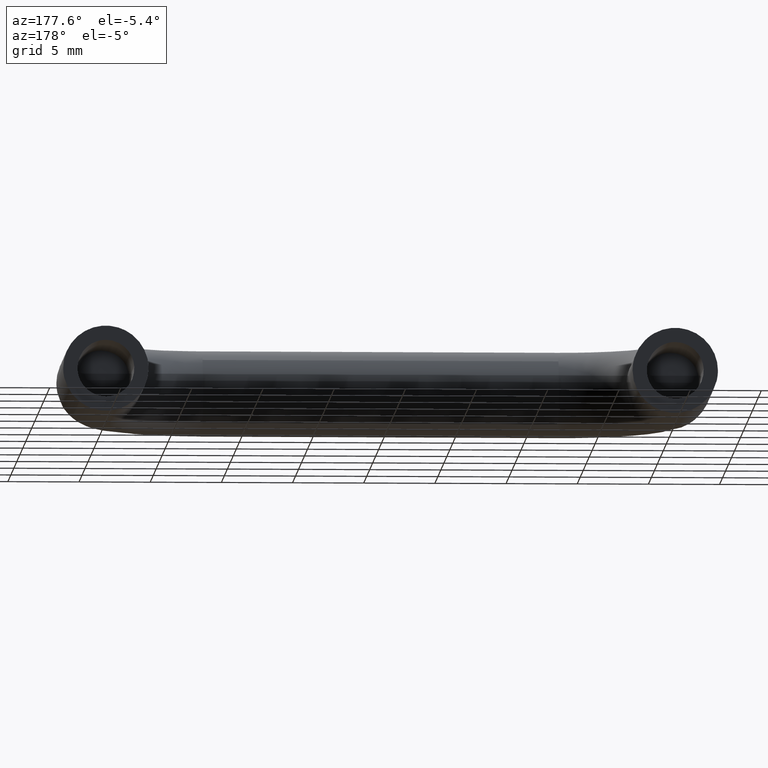
[diagram: clean part render]
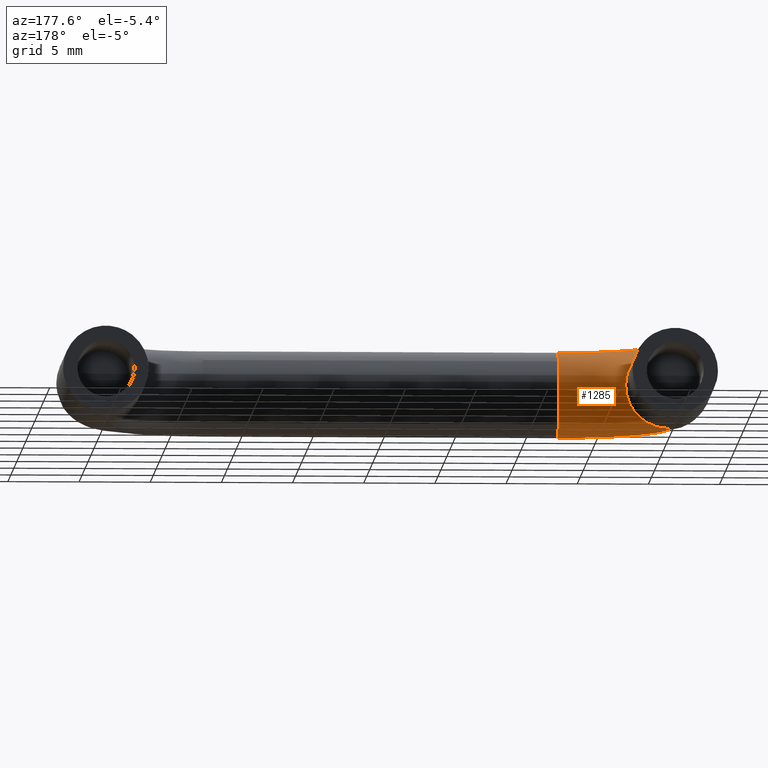
[diagram: same view with one face highlighted and labeled with its STEP entity id]
A machine part, auxiliary view. The second image highlights one B-rep face of the part: STEP entity #1285.
In plain terms, the highlighted face is a freeform B-spline surface patch.
Its self-contained STEP definition (entity closure, byte-faithful):
#685=CARTESIAN_POINT('',(7.499999999852138,-19.209199755468461,-2.992697021469419));
#686=VERTEX_POINT('',#685);
#700=CARTESIAN_POINT('',(7.500000000000000,-16.0,0.0));
#701=VERTEX_POINT('',#700);
#702=CARTESIAN_POINT('',(7.500000000000000,-16.0,0.0));
#703=CARTESIAN_POINT('',(7.500000000000000,-15.999999999999998,-3.0));
#704=CARTESIAN_POINT('',(7.500000000000000,-19.0,-3.0));
#705=CARTESIAN_POINT('',(7.499999999999999,-19.104727348368993,-3.000000000000000));
#706=CARTESIAN_POINT('',(7.499999999852138,-19.209199755468454,-2.992697021469420));
#714=(BOUNDED_CURVE()B_SPLINE_CURVE(2,(#702,#703,#704,#705,#706),.UNSPECIFIED.,.F.,.U.)B_SPLINE_CURVE_WITH_KNOTS((3,2,3),(0.0,0.250000000000000,0.262166313550163),.UNSPECIFIED.)CURVE()GEOMETRIC_REPRESENTATION_ITEM()RATIONAL_B_SPLINE_CURVE((1.0,0.707106781186548,1.0,0.985746277052796,0.972879876206656))REPRESENTATION_ITEM(''));
#715=EDGE_CURVE('',#701,#686,#714,.T.);
#717=CARTESIAN_POINT('',(7.499999999961977,-16.973229603323041,2.211832217647193));
#718=VERTEX_POINT('',#717);
#719=CARTESIAN_POINT('',(7.499999999961976,-16.973229603323041,2.211832217647193));
#720=CARTESIAN_POINT('',(7.500000000000000,-16.000000000000004,1.320031958778294));
#721=CARTESIAN_POINT('',(7.500000000000000,-16.0,0.0));
#729=(BOUNDED_CURVE()B_SPLINE_CURVE(2,(#719,#720,#721),.UNSPECIFIED.,.F.,.U.)B_SPLINE_CURVE_WITH_KNOTS((3,3),(0.868415178215821,1.0),.UNSPECIFIED.)CURVE()GEOMETRIC_REPRESENTATION_ITEM()RATIONAL_B_SPLINE_CURVE((0.853959784648125,0.845838792002550,1.0))REPRESENTATION_ITEM(''));
#730=EDGE_CURVE('',#718,#701,#729,.T.);
#832=CARTESIAN_POINT('',(7.499999999884268,-18.962301880149351,2.999763132608927));
#833=VERTEX_POINT('',#832);
#834=CARTESIAN_POINT('',(7.499999999884268,-18.962301880149354,2.999763132608927));
#835=CARTESIAN_POINT('',(7.499999999928997,-17.817403942490973,2.985375163295247));
#836=CARTESIAN_POINT('',(7.499999999961978,-16.973229603323045,2.211832217647193));
#844=(BOUNDED_CURVE()B_SPLINE_CURVE(2,(#834,#835,#836),.UNSPECIFIED.,.F.,.U.)B_SPLINE_CURVE_WITH_KNOTS((3,3),(0.752215704101791,0.868415178215821),.UNSPECIFIED.)CURVE()GEOMETRIC_REPRESENTATION_ITEM()RATIONAL_B_SPLINE_CURVE((0.994854295589879,0.861131243042069,0.853959784648125))REPRESENTATION_ITEM(''));
#845=EDGE_CURVE('',#833,#718,#844,.T.);
#888=CARTESIAN_POINT('',(0.037698095635357,-11.500000029335551,2.999763132913241));
#889=VERTEX_POINT('',#888);
#890=CARTESIAN_POINT('',(2.102727694393023,-11.500000008885870,2.139751447792988));
#891=VERTEX_POINT('',#890);
#892=CARTESIAN_POINT('',(0.037698095635357,-11.500000029335558,2.999763132913242));
#893=CARTESIAN_POINT('',(1.242986872460363,-11.500000017399628,2.984616249437938));
#894=CARTESIAN_POINT('',(2.102727694393023,-11.500000008885870,2.139751447792989));
#902=(BOUNDED_CURVE()B_SPLINE_CURVE(2,(#892,#893,#894),.UNSPECIFIED.,.F.,.U.)B_SPLINE_CURVE_WITH_KNOTS((3,3),(0.752215701262453,0.873683228002972),.UNSPECIFIED.)CURVE()GEOMETRIC_REPRESENTATION_ITEM()RATIONAL_B_SPLINE_CURVE((0.994854302124935,0.855068739749252,0.853569641607083))REPRESENTATION_ITEM(''));
#903=EDGE_CURVE('',#889,#891,#902,.T.);
#946=CARTESIAN_POINT('',(2.139751364201806,-11.500000000000000,-2.102727775865557));
#947=VERTEX_POINT('',#946);
#953=CARTESIAN_POINT('',(-0.209199756326542,-11.500000000403711,-2.992697021409436));
#954=VERTEX_POINT('',#953);
#955=CARTESIAN_POINT('',(2.139751364201806,-11.500000000000000,-2.102727775865558));
#956=CARTESIAN_POINT('',(1.258004433356857,-11.499999999999998,-3.000000000000000));
#957=CARTESIAN_POINT('',(1.408297E-015,-11.500000000000000,-3.0));
#958=CARTESIAN_POINT('',(-0.104727349230212,-11.500000000000004,-3.000000000000000));
#959=CARTESIAN_POINT('',(-0.209199756326542,-11.500000000403716,-2.992697021409436));
#967=(BOUNDED_CURVE()B_SPLINE_CURVE(2,(#955,#956,#957,#958,#959),.UNSPECIFIED.,.F.,.U.)B_SPLINE_CURVE_WITH_KNOTS((3,2,3),(0.123683240006499,0.250000000000000,0.262166313648786),.UNSPECIFIED.)CURVE()GEOMETRIC_REPRESENTATION_ITEM()RATIONAL_B_SPLINE_CURVE((0.853569641310800,0.852010710301668,1.0,0.985746276937252,0.972879875998058))REPRESENTATION_ITEM(''));
#968=EDGE_CURVE('',#947,#954,#967,.T.);
#1017=CARTESIAN_POINT('',(3.000000000000001,-11.500000000000000,0.0));
#1018=VERTEX_POINT('',#1017);
#1019=CARTESIAN_POINT('',(2.102727694393023,-11.500000008885870,2.139751447792989));
#1020=CARTESIAN_POINT('',(3.000000000000002,-11.499999999999996,1.258004573665670));
#1021=CARTESIAN_POINT('',(3.000000000000001,-11.500000000000000,0.0));
#1029=(BOUNDED_CURVE()B_SPLINE_CURVE(2,(#1019,#1020,#1021),.UNSPECIFIED.,.F.,.U.)B_SPLINE_CURVE_WITH_KNOTS((3,3),(0.873683228002973,1.0),.UNSPECIFIED.)CURVE()GEOMETRIC_REPRESENTATION_ITEM()RATIONAL_B_SPLINE_CURVE((0.853569641607083,0.852010696238664,1.0))REPRESENTATION_ITEM(''));
#1030=EDGE_CURVE('',#891,#1018,#1029,.T.);
#1032=CARTESIAN_POINT('',(3.000000000000001,-11.500000000000000,0.0));
#1033=CARTESIAN_POINT('',(3.000000000000002,-11.499999999999998,-1.227332376403718));
#1034=CARTESIAN_POINT('',(2.139751364201806,-11.500000000000000,-2.102727775865558));
#1042=(BOUNDED_CURVE()B_SPLINE_CURVE(2,(#1032,#1033,#1034),.UNSPECIFIED.,.F.,.U.)B_SPLINE_CURVE_WITH_KNOTS((3,3),(0.0,0.123683240006499),.UNSPECIFIED.)CURVE()GEOMETRIC_REPRESENTATION_ITEM()RATIONAL_B_SPLINE_CURVE((1.0,0.855096070884879,0.853569641310800))REPRESENTATION_ITEM(''));
#1043=EDGE_CURVE('',#1018,#947,#1042,.T.);
#1214=CARTESIAN_POINT('',(0.037698095635357,-11.500000029335551,2.999763132913241));
#1215=CARTESIAN_POINT('',(0.037698178321168,-18.962301880118471,2.999763132611447));
#1216=CARTESIAN_POINT('',(7.499999999884268,-18.962301880149351,2.999763132608928));
#1224=(BOUNDED_CURVE()B_SPLINE_CURVE(2,(#1214,#1215,#1216),.UNSPECIFIED.,.F.,.U.)B_SPLINE_CURVE_WITH_KNOTS((3,3),(-1.747842675456515,-0.278273130978392),.UNSPECIFIED.)CURVE()GEOMETRIC_REPRESENTATION_ITEM()RATIONAL_B_SPLINE_CURVE((0.893710735001690,0.628668024324756,0.884455039444070))REPRESENTATION_ITEM(''));
#1225=EDGE_CURVE('',#889,#833,#1224,.T.);
#1229=CARTESIAN_POINT('',(-0.209199756326542,-11.500000000403713,-2.992697021409435));
#1230=CARTESIAN_POINT('',(-0.209199753918900,-19.209199754430603,-2.992697021521296));
#1231=CARTESIAN_POINT('',(7.499999999852138,-19.209199755468465,-2.992697021469419));
#1239=(BOUNDED_CURVE()B_SPLINE_CURVE(2,(#1229,#1230,#1231),.UNSPECIFIED.,.F.,.U.)B_SPLINE_CURVE_WITH_KNOTS((3,3),(-1.747842683559836,-0.278273130985981),.UNSPECIFIED.)CURVE()GEOMETRIC_REPRESENTATION_ITEM()RATIONAL_B_SPLINE_CURVE((0.873607430554212,0.614526639174496,0.864559931596478))REPRESENTATION_ITEM(''));
#1240=EDGE_CURVE('',#954,#686,#1239,.T.);
#1245=CARTESIAN_POINT('',(0.055568331904680,-10.983873569235433,2.999763132611448));
#1246=CARTESIAN_POINT('',(-0.537904859166179,-19.543928537218214,2.999763132611447));
#1247=CARTESIAN_POINT('',(8.021703119409484,-18.944042934365211,2.999763132611448));
#1248=CARTESIAN_POINT('',(3.048147836092503,-11.191350707469521,2.962065012961390));
#1249=CARTESIAN_POINT('',(2.693244328654457,-16.310357897192482,2.962065012961389));
#1250=CARTESIAN_POINT('',(7.811984213786815,-15.951619696853628,2.962065012961389));
#1251=CARTESIAN_POINT('',(3.010539993331609,-11.188743335608473,-0.037698119650058));
#1252=CARTESIAN_POINT('',(2.652638373015686,-16.350994283298906,-0.037698119650058));
#1253=CARTESIAN_POINT('',(7.814619758010659,-15.989225575806197,-0.037698119650058));
#1254=CARTESIAN_POINT('',(2.972932150570710,-11.186135963747413,-3.037461252261505));
#1255=CARTESIAN_POINT('',(2.612032417376908,-16.391630669405327,-3.037461252261505));
#1256=CARTESIAN_POINT('',(7.817255302234495,-16.026831454758749,-3.037461252261505));
#1257=CARTESIAN_POINT('',(-0.019647353617111,-10.978658825513316,-2.999763132611448));
#1258=CARTESIAN_POINT('',(-0.619116770443725,-19.625201309431056,-2.999763132611447));
#1259=CARTESIAN_POINT('',(8.026974207857164,-19.019254692270323,-2.999763132611448));
#1260=CARTESIAN_POINT('',(-0.105293610680870,-10.972720924685230,-2.998684229664390));
#1261=CARTESIAN_POINT('',(-0.711590782767935,-19.717744622610169,-2.998684229664390));
#1262=CARTESIAN_POINT('',(8.032976267042878,-19.104896477053263,-2.998684229664391));
#1263=CARTESIAN_POINT('',(-0.190738123489741,-10.966797010894270,-2.992697033066902));
#1264=CARTESIAN_POINT('',(-0.803846967701288,-19.810069945156616,-2.992697033066901));
#1265=CARTESIAN_POINT('',(8.038964188063074,-19.190336528116003,-2.992697033066903));
#1273=(BOUNDED_SURFACE()B_SPLINE_SURFACE(2,2,((#1245,#1248,#1251,#1254,#1257,#1260,#1263),(#1246,#1249,#1252,#1255,#1258,#1261,#1264),(#1247,#1250,#1253,#1256,#1259,#1262,#1265)),.UNSPECIFIED.,.F.,.F.,.U.)B_SPLINE_SURFACE_WITH_KNOTS((3,3),(3,2,2,3),(0.0,14.048933140469400),(0.0,4.970562748477140,9.941125496954280,10.139947817281440),.UNSPECIFIED.)GEOMETRIC_REPRESENTATION_ITEM()RATIONAL_B_SPLINE_SURFACE(((0.921487970695580,0.651590392860676,0.921487970695580,0.651590392860676,0.921487970695580,0.910692077877960,0.900759855662087),(0.601353110281207,0.425220862167464,0.601353110281207,0.425220862167464,0.601353110281207,0.594307827075570,0.587826165988871),(0.911307631818076,0.644391806205615,0.911307631818076,0.644391806205615,0.911307631818076,0.900631008975608,0.890808515145976)))REPRESENTATION_ITEM('')SURFACE());
#1274=ORIENTED_EDGE('',*,*,#715,.T.);
#1275=ORIENTED_EDGE('',*,*,#1240,.F.);
#1276=ORIENTED_EDGE('',*,*,#968,.F.);
#1277=ORIENTED_EDGE('',*,*,#1043,.F.);
#1278=ORIENTED_EDGE('',*,*,#1030,.F.);
#1279=ORIENTED_EDGE('',*,*,#903,.F.);
#1280=ORIENTED_EDGE('',*,*,#1225,.T.);
#1281=ORIENTED_EDGE('',*,*,#845,.T.);
#1282=ORIENTED_EDGE('',*,*,#730,.T.);
#1283=EDGE_LOOP('',(#1274,#1275,#1276,#1277,#1278,#1279,#1280,#1281,#1282));
#1284=FACE_OUTER_BOUND('',#1283,.T.);
#1285=ADVANCED_FACE('',(#1284),#1273,.T.);